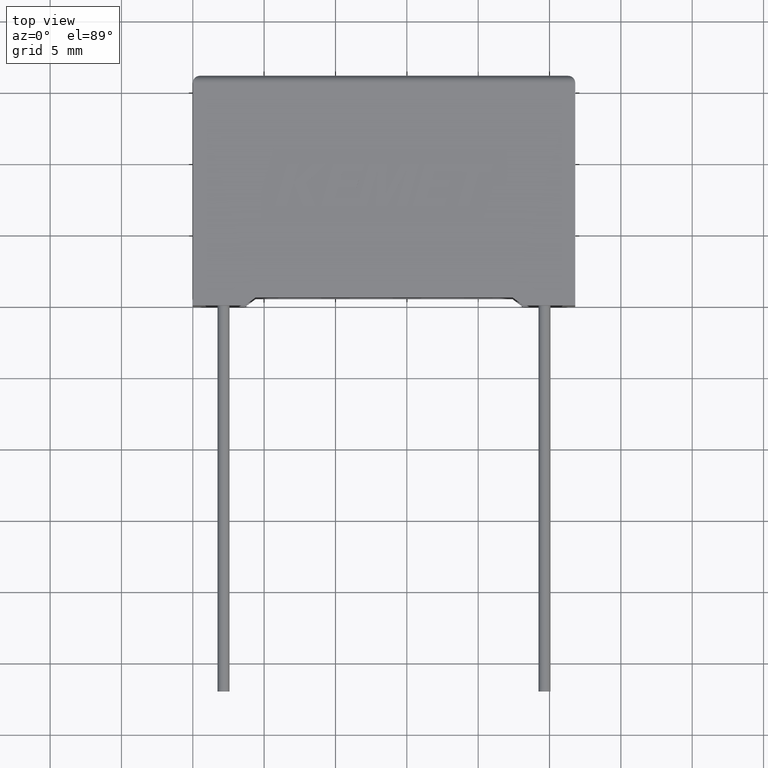
[diagram: clean part render]
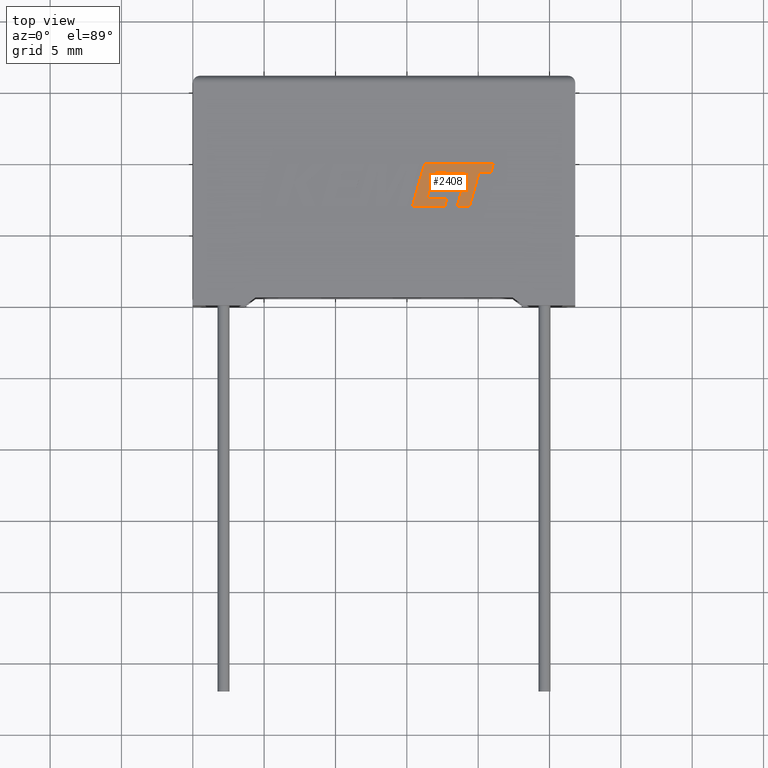
[diagram: same view with one face highlighted and labeled with its STEP entity id]
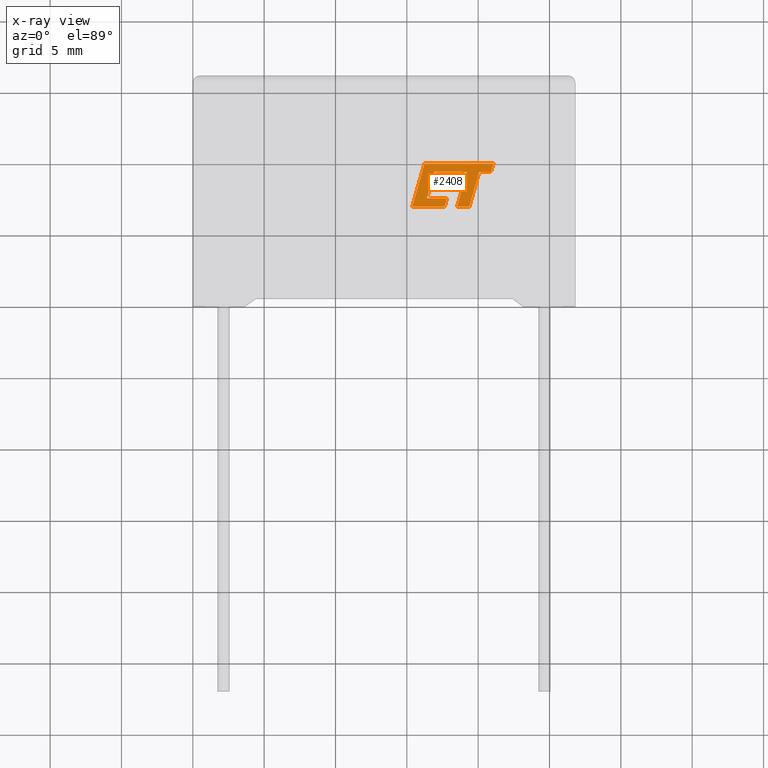
[diagram: x-ray of the same camera — body ghosted, the highlighted face saturated]
A machine part, top view. The second image highlights one B-rep face of the part: STEP entity #2408.
The next image is the same camera in x-ray: the body ghosted, the highlighted face saturated — about 0% of this face is hidden behind the body in this view.
In plain terms, the highlighted planar face has unit normal (0, 0, 1).
Its self-contained STEP definition (entity closure, byte-faithful):
#4 = EDGE_CURVE ( 'NONE', #2150, #1514, #2568, .T. ) ;
#32 = EDGE_CURVE ( 'NONE', #2105, #1751, #2815, .T. ) ;
#42 = VECTOR ( 'NONE', #2765, 1000.000000000000114 ) ;
#80 = VERTEX_POINT ( 'NONE', #984 ) ;
#110 = CARTESIAN_POINT ( 'NONE',  ( 18.52587594473993349, 6.927829999999908672, 7.204999999999999183 ) ) ;
#114 = EDGE_CURVE ( 'NONE', #2669, #2894, #965, .T. ) ;
#128 = CARTESIAN_POINT ( 'NONE',  ( 18.05985108378877158, 8.799833739499240082, 7.204999999999999183 ) ) ;
#148 = ORIENTED_EDGE ( 'NONE', *, *, #1237, .T. ) ;
#166 = VECTOR ( 'NONE', #3014, 1000.000000000000114 ) ;
#184 = CARTESIAN_POINT ( 'NONE',  ( 18.30970349758751325, 9.354302740498789959, 7.204999999999999183 ) ) ;
#186 = VECTOR ( 'NONE', #869, 1000.000000000000114 ) ;
#221 = DIRECTION ( 'NONE',  ( 1.000000000000000000, 5.694109626320595965E-16, 0.000000000000000000 ) ) ;
#238 = CARTESIAN_POINT ( 'NONE',  ( 19.22229368320639864, 9.350058517059677499, 7.204999999999999183 ) ) ;
#273 = VECTOR ( 'NONE', #724, 1000.000000000000114 ) ;
#281 = LINE ( 'NONE', #1958, #2165 ) ;
#289 = EDGE_CURVE ( 'NONE', #2657, #2150, #2804, .T. ) ;
#315 = CARTESIAN_POINT ( 'NONE',  ( 20.07719893950525147, 9.350058517052215024, 7.204999999999999183 ) ) ;
#321 = VECTOR ( 'NONE', #702, 1000.000000000000227 ) ;
#340 = CARTESIAN_POINT ( 'NONE',  ( 19.38098200300940732, 6.927829999999908672, 7.204999999999999183 ) ) ;
#380 = LINE ( 'NONE', #2502, #186 ) ;
#389 = LINE ( 'NONE', #110, #2440 ) ;
#417 = LINE ( 'NONE', #819, #2940 ) ;
#470 = CARTESIAN_POINT ( 'NONE',  ( 20.07719893950525147, 9.350058517052215024, 7.204999999999999183 ) ) ;
#487 = CARTESIAN_POINT ( 'NONE',  ( 21.06565576242807580, 9.929655146294752655, 7.204999999999999183 ) ) ;
#499 = CARTESIAN_POINT ( 'NONE',  ( -0.3258222201975285448, -2.788102143479581407, 7.204999999999998295 ) ) ;
#510 = DIRECTION ( 'NONE',  ( 0.2746918797667269874, 0.9615323037684286867, 0.000000000000000000 ) ) ;
#543 = VERTEX_POINT ( 'NONE', #340 ) ;
#552 = LINE ( 'NONE', #315, #1571 ) ;
#562 = AXIS2_PLACEMENT_3D ( 'NONE', #499, #1904, #1209 ) ;
#587 = ORIENTED_EDGE ( 'NONE', *, *, #32, .T. ) ;
#617 = EDGE_CURVE ( 'NONE', #1001, #2669, #1796, .T. ) ;
#633 = ORIENTED_EDGE ( 'NONE', *, *, #1769, .T. ) ;
#663 = LINE ( 'NONE', #487, #1916 ) ;
#700 = DIRECTION ( 'NONE',  ( -1.000000000000000000, 0.000000000000000000, 0.000000000000000000 ) ) ;
#702 = DIRECTION ( 'NONE',  ( 0.2793947940814923148, 0.9601763114346033579, 0.000000000000000000 ) ) ;
#715 = EDGE_CURVE ( 'NONE', #884, #2657, #663, .T. ) ;
#724 = DIRECTION ( 'NONE',  ( -0.2764273280489764062, -0.9610348236706636182, 0.000000000000000000 ) ) ;
#726 = CARTESIAN_POINT ( 'NONE',  ( 15.38334338224329834, 6.927829999999906896, 7.204999999999999183 ) ) ;
#776 = EDGE_CURVE ( 'NONE', #2894, #2105, #1692, .T. ) ;
#783 = DIRECTION ( 'NONE',  ( 0.2762437428917223770, 0.9610876102172850599, 0.000000000000000000 ) ) ;
#806 = CARTESIAN_POINT ( 'NONE',  ( 16.40035059182244126, 7.499038583335604358, 7.204999999999999183 ) ) ;
#814 = CARTESIAN_POINT ( 'NONE',  ( 16.61331020747001830, 8.244999644009046946, 7.204999999999999183 ) ) ;
#816 = LINE ( 'NONE', #2959, #42 ) ;
#819 = CARTESIAN_POINT ( 'NONE',  ( 16.40035059182244126, 7.499038583335604358, 7.204999999999999183 ) ) ;
#841 = CARTESIAN_POINT ( 'NONE',  ( 20.89907096225862304, 9.349993269888685177, 7.204999999999999183 ) ) ;
#869 = DIRECTION ( 'NONE',  ( -0.2763173343569615970, -0.9610664548999008350, 0.000000000000000000 ) ) ;
#884 = VERTEX_POINT ( 'NONE', #1293 ) ;
#887 = EDGE_CURVE ( 'NONE', #1514, #80, #816, .T. ) ;
#911 = CARTESIAN_POINT ( 'NONE',  ( 17.81339404874116639, 7.499038583335604358, 7.204999999999999183 ) ) ;
#950 = FACE_OUTER_BOUND ( 'NONE', #2326, .T. ) ;
#965 = LINE ( 'NONE', #2349, #2533 ) ;
#966 = CARTESIAN_POINT ( 'NONE',  ( 16.77163343278391494, 8.799833739499240082, 7.204999999999999183 ) ) ;
#984 = CARTESIAN_POINT ( 'NONE',  ( 17.81339404874116639, 7.499038583335604358, 7.204999999999999183 ) ) ;
#991 = ORIENTED_EDGE ( 'NONE', *, *, #2037, .T. ) ;
#1001 = VERTEX_POINT ( 'NONE', #1684 ) ;
#1005 = CARTESIAN_POINT ( 'NONE',  ( 18.05985108378877158, 8.799833739499240082, 7.204999999999999183 ) ) ;
#1055 = EDGE_CURVE ( 'NONE', #1750, #2229, #552, .T. ) ;
#1075 = LINE ( 'NONE', #2059, #166 ) ;
#1076 = ORIENTED_EDGE ( 'NONE', *, *, #289, .T. ) ;
#1119 = DIRECTION ( 'NONE',  ( -1.000000000000000000, 0.000000000000000000, 0.000000000000000000 ) ) ;
#1125 = VECTOR ( 'NONE', #2192, 1000.000000000000000 ) ;
#1155 = VECTOR ( 'NONE', #783, 1000.000000000000000 ) ;
#1209 = DIRECTION ( 'NONE',  ( 1.000000000000000000, 0.000000000000000000, 0.000000000000000000 ) ) ;
#1226 = VECTOR ( 'NONE', #2038, 1000.000000000000000 ) ;
#1231 = CARTESIAN_POINT ( 'NONE',  ( 16.77163343278391494, 8.799833739499240082, 7.204999999999999183 ) ) ;
#1237 = EDGE_CURVE ( 'NONE', #1325, #2082, #380, .T. ) ;
#1293 = CARTESIAN_POINT ( 'NONE',  ( 21.06565576242807580, 9.929655146294752655, 7.204999999999999183 ) ) ;
#1316 = ORIENTED_EDGE ( 'NONE', *, *, #1878, .T. ) ;
#1325 = VERTEX_POINT ( 'NONE', #238 ) ;
#1345 = EDGE_CURVE ( 'NONE', #80, #2361, #3044, .T. ) ;
#1348 = DIRECTION ( 'NONE',  ( 1.000000000000000000, 0.000000000000000000, 0.000000000000000000 ) ) ;
#1463 = ORIENTED_EDGE ( 'NONE', *, *, #2900, .T. ) ;
#1485 = DIRECTION ( 'NONE',  ( 0.2762033010290175783, 0.9610992334304890861, 0.000000000000000000 ) ) ;
#1512 = CARTESIAN_POINT ( 'NONE',  ( 17.90134531123016259, 8.244999644009046946, 7.204999999999999183 ) ) ;
#1514 = VERTEX_POINT ( 'NONE', #1758 ) ;
#1571 = VECTOR ( 'NONE', #1697, 1000.000000000000114 ) ;
#1587 = ORIENTED_EDGE ( 'NONE', *, *, #1055, .T. ) ;
#1648 = CARTESIAN_POINT ( 'NONE',  ( 15.38334338224329834, 6.927829999999906896, 7.204999999999999183 ) ) ;
#1679 = ORIENTED_EDGE ( 'NONE', *, *, #715, .T. ) ;
#1684 = CARTESIAN_POINT ( 'NONE',  ( 16.61331020747001830, 8.244999644009046946, 7.204999999999999183 ) ) ;
#1692 = LINE ( 'NONE', #1005, #1125 ) ;
#1697 = DIRECTION ( 'NONE',  ( 0.9999999968487351953, -7.938847109813992875E-05, 0.000000000000000000 ) ) ;
#1719 = CARTESIAN_POINT ( 'NONE',  ( 18.52587594473993349, 6.927829999999908672, 7.204999999999999183 ) ) ;
#1740 = ORIENTED_EDGE ( 'NONE', *, *, #1345, .T. ) ;
#1750 = VERTEX_POINT ( 'NONE', #470 ) ;
#1751 = VERTEX_POINT ( 'NONE', #2825 ) ;
#1756 = VERTEX_POINT ( 'NONE', #2594 ) ;
#1758 = CARTESIAN_POINT ( 'NONE',  ( 17.65131035018722372, 6.927829999999908672, 7.204999999999999183 ) ) ;
#1769 = EDGE_CURVE ( 'NONE', #2229, #884, #281, .T. ) ;
#1775 = DIRECTION ( 'NONE',  ( 0.2745159998572630489, 0.9615825319869153454, 0.000000000000000000 ) ) ;
#1796 = LINE ( 'NONE', #814, #1226 ) ;
#1834 = ORIENTED_EDGE ( 'NONE', *, *, #617, .T. ) ;
#1841 = DIRECTION ( 'NONE',  ( 0.9999891854650020395, -0.004650693823678666086, 0.000000000000000000 ) ) ;
#1878 = EDGE_CURVE ( 'NONE', #2082, #543, #389, .T. ) ;
#1879 = ORIENTED_EDGE ( 'NONE', *, *, #114, .T. ) ;
#1888 = CARTESIAN_POINT ( 'NONE',  ( 16.24677359728082493, 9.929655146294752655, 7.204999999999999183 ) ) ;
#1895 = CARTESIAN_POINT ( 'NONE',  ( 16.24677359728082493, 9.929655146294752655, 7.204999999999999183 ) ) ;
#1904 = DIRECTION ( 'NONE',  ( 0.000000000000000000, 0.000000000000000000, 1.000000000000000000 ) ) ;
#1916 = VECTOR ( 'NONE', #1119, 1000.000000000000000 ) ;
#1958 = CARTESIAN_POINT ( 'NONE',  ( 20.89907096225862304, 9.349993269888685177, 7.204999999999999183 ) ) ;
#2037 = EDGE_CURVE ( 'NONE', #1756, #1325, #2522, .T. ) ;
#2038 = DIRECTION ( 'NONE',  ( 1.000000000000000000, 1.002616505299178603E-15, 0.000000000000000000 ) ) ;
#2059 = CARTESIAN_POINT ( 'NONE',  ( 16.93410048055206474, 9.358172742087070617, 7.204999999999999183 ) ) ;
#2082 = VERTEX_POINT ( 'NONE', #1719 ) ;
#2096 = EDGE_CURVE ( 'NONE', #543, #1750, #2860, .T. ) ;
#2105 = VERTEX_POINT ( 'NONE', #1231 ) ;
#2150 = VERTEX_POINT ( 'NONE', #726 ) ;
#2165 = VECTOR ( 'NONE', #1485, 1000.000000000000114 ) ;
#2177 = ORIENTED_EDGE ( 'NONE', *, *, #776, .T. ) ;
#2191 = ORIENTED_EDGE ( 'NONE', *, *, #887, .T. ) ;
#2192 = DIRECTION ( 'NONE',  ( -1.000000000000000000, 0.000000000000000000, 0.000000000000000000 ) ) ;
#2195 = ORIENTED_EDGE ( 'NONE', *, *, #2096, .T. ) ;
#2225 = ORIENTED_EDGE ( 'NONE', *, *, #4, .T. ) ;
#2229 = VERTEX_POINT ( 'NONE', #841 ) ;
#2297 = VECTOR ( 'NONE', #700, 1000.000000000000000 ) ;
#2326 = EDGE_LOOP ( 'NONE', ( #2409, #991, #148, #1316, #2195, #1587, #633, #1679, #1076, #2225, #2191, #1740, #1463, #1834, #1879, #2177, #587 ) ) ;
#2349 = CARTESIAN_POINT ( 'NONE',  ( 17.90134531123016259, 8.244999644009046946, 7.204999999999999183 ) ) ;
#2361 = VERTEX_POINT ( 'NONE', #806 ) ;
#2408 = ADVANCED_FACE ( 'NONE', ( #950 ), #2423, .T. ) ;
#2409 = ORIENTED_EDGE ( 'NONE', *, *, #2549, .T. ) ;
#2423 = PLANE ( 'NONE',  #562 ) ;
#2440 = VECTOR ( 'NONE', #1348, 1000.000000000000000 ) ;
#2502 = CARTESIAN_POINT ( 'NONE',  ( 19.22229368320639864, 9.350058517059677499, 7.204999999999999183 ) ) ;
#2522 = LINE ( 'NONE', #184, #2767 ) ;
#2533 = VECTOR ( 'NONE', #510, 1000.000000000000114 ) ;
#2549 = EDGE_CURVE ( 'NONE', #1751, #1756, #1075, .T. ) ;
#2568 = LINE ( 'NONE', #1648, #2587 ) ;
#2587 = VECTOR ( 'NONE', #221, 1000.000000000000000 ) ;
#2594 = CARTESIAN_POINT ( 'NONE',  ( 18.30970349758751325, 9.354302740498789959, 7.204999999999999183 ) ) ;
#2608 = CARTESIAN_POINT ( 'NONE',  ( 19.38098200300940732, 6.927829999999908672, 7.204999999999999183 ) ) ;
#2657 = VERTEX_POINT ( 'NONE', #1895 ) ;
#2669 = VERTEX_POINT ( 'NONE', #1512 ) ;
#2765 = DIRECTION ( 'NONE',  ( 0.2729786930694848013, 0.9620200793798827643, 0.000000000000000000 ) ) ;
#2767 = VECTOR ( 'NONE', #1841, 1000.000000000000114 ) ;
#2804 = LINE ( 'NONE', #1888, #273 ) ;
#2815 = LINE ( 'NONE', #966, #321 ) ;
#2825 = CARTESIAN_POINT ( 'NONE',  ( 16.93410048055206474, 9.358172742087070617, 7.204999999999999183 ) ) ;
#2860 = LINE ( 'NONE', #2608, #1155 ) ;
#2894 = VERTEX_POINT ( 'NONE', #128 ) ;
#2900 = EDGE_CURVE ( 'NONE', #2361, #1001, #417, .T. ) ;
#2940 = VECTOR ( 'NONE', #1775, 1000.000000000000114 ) ;
#2959 = CARTESIAN_POINT ( 'NONE',  ( 17.65131035018722372, 6.927829999999908672, 7.204999999999999183 ) ) ;
#3014 = DIRECTION ( 'NONE',  ( 0.9999960426590095430, -0.002813301676021314271, 0.000000000000000000 ) ) ;
#3044 = LINE ( 'NONE', #911, #2297 ) ;